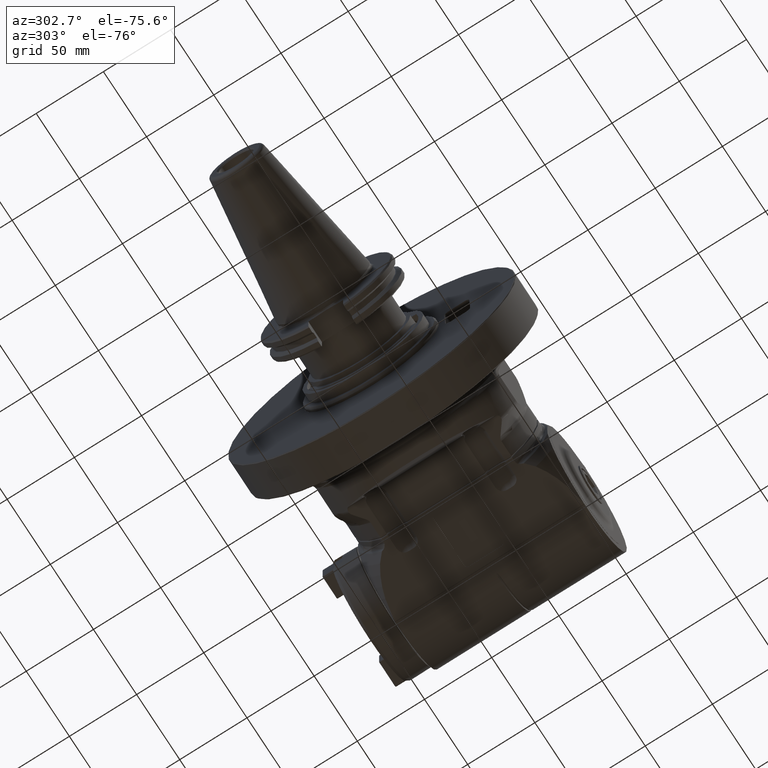
[diagram: clean part render]
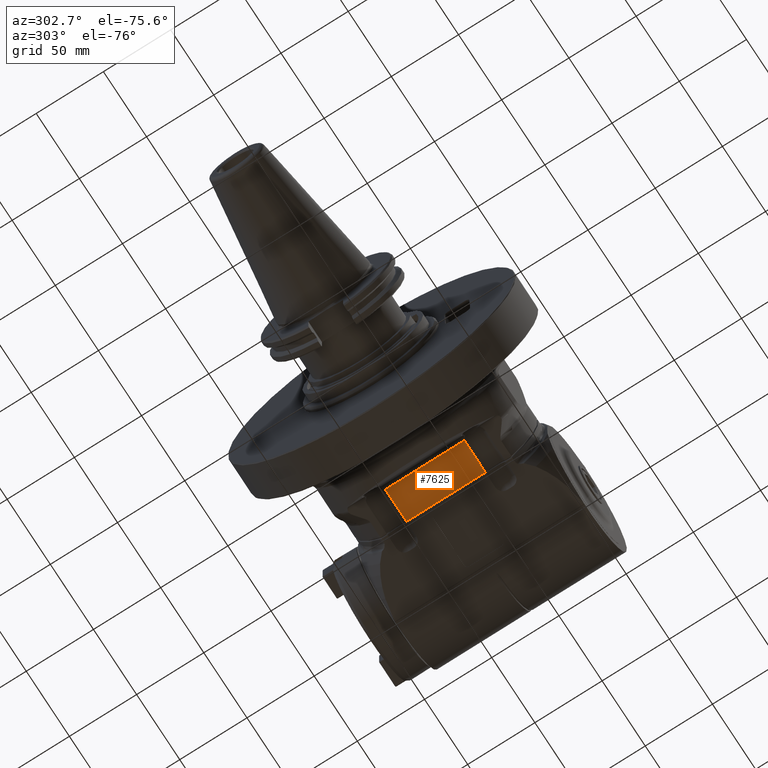
[diagram: same view with one face highlighted and labeled with its STEP entity id]
A machine part, auxiliary view. The second image highlights one B-rep face of the part: STEP entity #7625.
In plain terms, the highlighted planar face has unit normal (-0, 0, 1).
Its self-contained STEP definition (entity closure, byte-faithful):
#757=FACE_OUTER_BOUND('',#1262,.T.);
#1262=EDGE_LOOP('',(#6286,#6287,#6288,#6289,#6290,#6291));
#1772=CIRCLE('',#8489,5.361902647382);
#1775=CIRCLE('',#8494,5.361902647382);
#2176=LINE('',#13428,#2676);
#2178=LINE('',#13434,#2678);
#2179=LINE('',#13438,#2679);
#2180=LINE('',#13439,#2680);
#2676=VECTOR('',#10305,22.5);
#2678=VECTOR('',#10311,59.46724184205);
#2679=VECTOR('',#10314,22.49999999982);
#2680=VECTOR('',#10315,58.69397595347);
#3514=VERTEX_POINT('',#13414);
#3515=VERTEX_POINT('',#13423);
#3516=VERTEX_POINT('',#13427);
#3518=VERTEX_POINT('',#13433);
#3519=VERTEX_POINT('',#13435);
#3520=VERTEX_POINT('',#13437);
#4497=EDGE_CURVE('',#3515,#3514,#1772,.T.);
#4499=EDGE_CURVE('',#3515,#3516,#2176,.T.);
#4502=EDGE_CURVE('',#3518,#3514,#2178,.T.);
#4503=EDGE_CURVE('',#3519,#3518,#1775,.T.);
#4504=EDGE_CURVE('',#3520,#3519,#2179,.T.);
#4505=EDGE_CURVE('',#3520,#3516,#2180,.T.);
#6286=ORIENTED_EDGE('',*,*,#4502,.F.);
#6287=ORIENTED_EDGE('',*,*,#4503,.F.);
#6288=ORIENTED_EDGE('',*,*,#4504,.F.);
#6289=ORIENTED_EDGE('',*,*,#4505,.T.);
#6290=ORIENTED_EDGE('',*,*,#4499,.F.);
#6291=ORIENTED_EDGE('',*,*,#4497,.T.);
#7247=PLANE('',#8493);
#7625=ADVANCED_FACE('',(#757),#7247,.F.);
#8489=AXIS2_PLACEMENT_3D('',#13424,#10299,#10300);
#8493=AXIS2_PLACEMENT_3D('',#13432,#10309,#10310);
#8494=AXIS2_PLACEMENT_3D('',#13436,#10312,#10313);
#10299=DIRECTION('center_axis',(0.,0.,-1.));
#10300=DIRECTION('ref_axis',(3.949003724637E-13,-1.,0.));
#10305=DIRECTION('',(0.999999999999998,-5.78813983212199E-8,2.381612015749E-8));
#10309=DIRECTION('center_axis',(0.,0.,-1.));
#10310=DIRECTION('ref_axis',(-1.,0.,0.));
#10311=DIRECTION('',(0.,1.,0.));
#10312=DIRECTION('center_axis',(0.,0.,1.));
#10313=DIRECTION('ref_axis',(9.791011415933E-11,1.,0.));
#10314=DIRECTION('',(-0.999999999999998,-5.78821353913299E-8,-2.381652658812E-8));
#10315=DIRECTION('',(0.,1.,-1.562870221287E-13));
#13414=CARTESIAN_POINT('',(16.00083056686,29.73362092102,47.5));
#13423=CARTESIAN_POINT('',(18.,29.34698927909,47.5));
#13424=CARTESIAN_POINT('Origin',(18.,34.70889192647,47.5));
#13427=CARTESIAN_POINT('',(40.4999999726852,29.3469887109007,47.5000004198541));
#13428=CARTESIAN_POINT('',(18.,29.34698927909,47.5));
#13432=CARTESIAN_POINT('Origin',(39.5,92.4000024,47.5));
#13433=CARTESIAN_POINT('',(16.00083056686,-29.73362092102,47.5));
#13434=CARTESIAN_POINT('',(16.00083056686,-29.73362092102,47.5));
#13435=CARTESIAN_POINT('',(18.00000000052,-29.34698927909,47.5));
#13436=CARTESIAN_POINT('Origin',(18.,-34.70889192647,47.5));
#13437=CARTESIAN_POINT('',(40.4999999726859,-29.3469887108818,47.5000004198611));
#13438=CARTESIAN_POINT('',(40.5,-29.34698797671,47.50000053587));
#13439=CARTESIAN_POINT('',(40.5,-29.34698797671,47.50000053587));